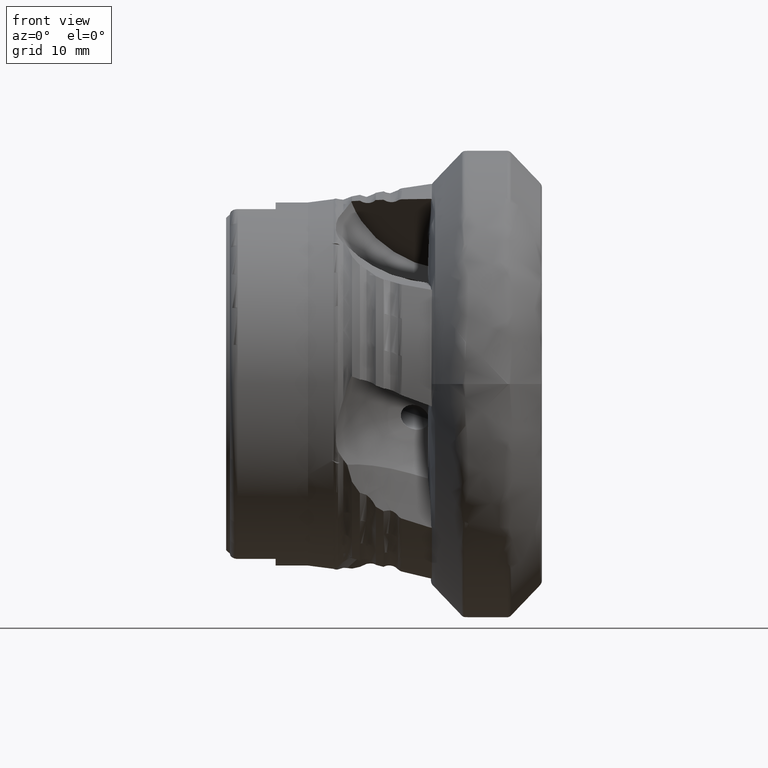
[diagram: clean part render]
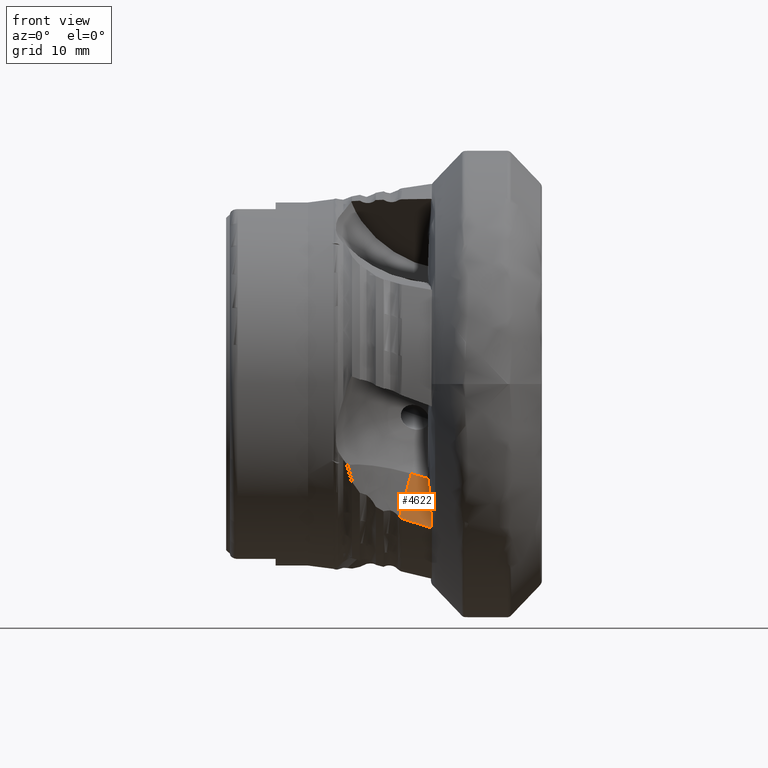
[diagram: same view with one face highlighted and labeled with its STEP entity id]
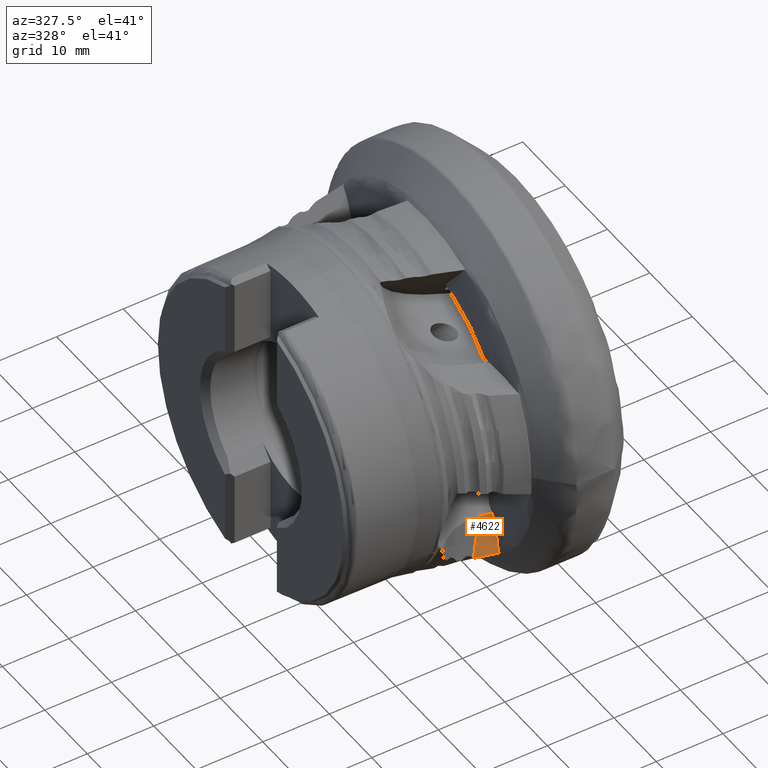
[diagram: same view with one face highlighted and labeled with its STEP entity id]
A machine part, front view. The second image highlights one B-rep face of the part: STEP entity #4622.
A second angle (auxiliary view) of the same face is appended — the face is thin or edge-on in the first view.
In plain terms, the highlighted planar face has unit normal (-0.1458, 0.9776, -0.1516).
Its self-contained STEP definition (entity closure, byte-faithful):
#19 = CARTESIAN_POINT ( 'NONE',  ( -12.99128308614031900, -17.62367975077520700, -18.21260289722786400 ) ) ;
#81 = CARTESIAN_POINT ( 'NONE',  ( -13.11160513520542500, -17.56185207285787800, -17.69831278248667400 ) ) ;
#262 = ORIENTED_EDGE ( 'NONE', *, *, #5163, .T. ) ;
#321 = DIRECTION ( 'NONE',  ( 0.9563047559630353200, 0.09999701235363783700, -0.2747395334545538700 ) ) ;
#408 = PLANE ( 'NONE',  #9230 ) ;
#424 = CARTESIAN_POINT ( 'NONE',  ( -12.99128308614031900, -17.62367975077520700, -18.21260289722786400 ) ) ;
#451 = B_SPLINE_CURVE_WITH_KNOTS ( 'NONE', 3,
 ( #5542, #2638, #8678, #4797 ),
 .UNSPECIFIED., .F., .F.,
 ( 4, 4 ),
 ( 2.101288066894413800E-007, 0.0001230032601015956400 ),
 .UNSPECIFIED. ) ;
#578 = B_SPLINE_CURVE_WITH_KNOTS ( 'NONE', 3,
 ( #19, #5240, #788, #2282, #8322, #81, #6085, #4527, #8297, #1633, #2338, #5991, #4558, #6825, #7595, #6789, #1528, #6860 ),
 .UNSPECIFIED., .F., .F.,
 ( 4, 2, 2, 2, 2, 2, 2, 2, 4 ),
 ( 0.005152208385864691000, 0.005350419478960494900, 0.005548630572056298700, 0.005945052758247907300, 0.006737897130631133200, 0.007530741503014359800, 0.008323585875397585700, 0.009909274620164044300, 0.01149496336493050300 ),
 .UNSPECIFIED. ) ;
#788 = CARTESIAN_POINT ( 'NONE',  ( -13.04337848692076200, -17.61207021958265900, -18.08766882312525200 ) ) ;
#874 = CARTESIAN_POINT ( 'NONE',  ( -17.08847830606466200, -18.02876348433765600, -16.88500868373394300 ) ) ;
#1122 = CARTESIAN_POINT ( 'NONE',  ( -15.61138407190258300, -16.95011119534634900, -11.35098804868099100 ) ) ;
#1438 = DIRECTION ( 'NONE',  ( -0.1457910410838688400, 0.9776250549777395500, -0.1516384655008534700 ) ) ;
#1451 = CARTESIAN_POINT ( 'NONE',  ( -15.61138407190258300, -16.95011119534638400, -11.35098804868100700 ) ) ;
#1515 = VERTEX_POINT ( 'NONE', #2381 ) ;
#1528 = CARTESIAN_POINT ( 'NONE',  ( -13.43545261059459900, -16.80160970108752500, -12.48561131866635200 ) ) ;
#1567 = VECTOR ( 'NONE', #3666, 1000.000000000000200 ) ;
#1589 = ORIENTED_EDGE ( 'NONE', *, *, #6650, .T. ) ;
#1592 = FACE_OUTER_BOUND ( 'NONE', #2526, .T. ) ;
#1633 = CARTESIAN_POINT ( 'NONE',  ( -13.10686704099587300, -17.35834734834317300, -16.39085728200063800 ) ) ;
#1684 = VERTEX_POINT ( 'NONE', #5443 ) ;
#2282 = CARTESIAN_POINT ( 'NONE',  ( -13.07877334401129600, -17.59729870452060400, -17.95840573526594900 ) ) ;
#2338 = CARTESIAN_POINT ( 'NONE',  ( -13.09980644783205900, -17.31669287541779000, -16.12909596026329200 ) ) ;
#2381 = CARTESIAN_POINT ( 'NONE',  ( -13.25900000000000000, -17.65650538537759900, -18.16683901580382000 ) ) ;
#2396 = CARTESIAN_POINT ( 'NONE',  ( -16.99508496783542100, -18.02631815791310300, -16.95903541299041400 ) ) ;
#2444 = ORIENTED_EDGE ( 'NONE', *, *, #7320, .T. ) ;
#2501 = CARTESIAN_POINT ( 'NONE',  ( -12.99128308614031900, -17.62367975077520700, -18.21260289722786400 ) ) ;
#2526 = EDGE_LOOP ( 'NONE', ( #262, #4884, #5086, #2858, #1589, #8219, #2444 ) ) ;
#2606 = LINE ( 'NONE', #2923, #1567 ) ;
#2638 = CARTESIAN_POINT ( 'NONE',  ( -13.22004075885251100, -17.65262741397193800, -18.17929434045925400 ) ) ;
#2672 = CARTESIAN_POINT ( 'NONE',  ( -15.61138407190258300, -16.95011119534638400, -11.35098804868100700 ) ) ;
#2690 =( BOUNDED_CURVE ( )  B_SPLINE_CURVE ( 3, ( #9405, #5728, #4908, #424 ),
 .UNSPECIFIED., .F., .T. ) 
 B_SPLINE_CURVE_WITH_KNOTS ( ( 4, 4 ),
 ( 4.096246615624300700, 4.097305811679246900 ),
 .UNSPECIFIED. ) 
 CURVE ( )  GEOMETRIC_REPRESENTATION_ITEM ( )  RATIONAL_B_SPLINE_CURVE ( ( 1.000000000000000000, 0.9999999065086451200, 0.9999999065086451200, 1.000000000000000000 ) ) 
 REPRESENTATION_ITEM ( '' )  );
#2858 = ORIENTED_EDGE ( 'NONE', *, *, #6146, .F. ) ;
#2923 = CARTESIAN_POINT ( 'NONE',  ( -15.61138407190258300, -16.95011119534638400, -11.35098804868100700 ) ) ;
#3086 = CARTESIAN_POINT ( 'NONE',  ( -16.77500000000000600, -18.00853376727341600, -17.05597619026752900 ) ) ;
#3161 = CARTESIAN_POINT ( 'NONE',  ( -16.77500000000000600, -18.00853376727341600, -17.05597619026752900 ) ) ;
#3198 = EDGE_CURVE ( 'NONE', #6429, #1684, #9199, .T. ) ;
#3261 = CARTESIAN_POINT ( 'NONE',  ( -13.25900000000000000, -17.65650538537759900, -18.16683901580382000 ) ) ;
#3666 = DIRECTION ( 'NONE',  ( 0.2534288579900900700, 0.1850671483546385300, 0.9494861581601497000 ) ) ;
#3904 = VERTEX_POINT ( 'NONE', #6302 ) ;
#3960 = B_SPLINE_CURVE_WITH_KNOTS ( 'NONE', 3,
 ( #7045, #4812, #6240, #3261 ),
 .UNSPECIFIED., .F., .F.,
 ( 4, 4 ),
 ( 2.111385295861541700E-007, 0.003704289458276442800 ),
 .UNSPECIFIED. ) ;
#4080 = VERTEX_POINT ( 'NONE', #3086 ) ;
#4365 = VERTEX_POINT ( 'NONE', #4966 ) ;
#4527 = CARTESIAN_POINT ( 'NONE',  ( -13.12222971834799200, -17.48239858560316800, -17.17585504973844100 ) ) ;
#4558 = CARTESIAN_POINT ( 'NONE',  ( -13.11153869609920600, -17.19688711101290600, -15.34541898681474400 ) ) ;
#4622 = ADVANCED_FACE ( 'NONE', ( #1592 ), #408, .F. ) ;
#4640 = CARTESIAN_POINT ( 'NONE',  ( -16.88928857505130300, -18.01982345369826900, -17.01888025942727400 ) ) ;
#4797 = CARTESIAN_POINT ( 'NONE',  ( -13.14000000000000600, -17.64296057833769300, -18.19392575232781100 ) ) ;
#4812 = CARTESIAN_POINT ( 'NONE',  ( -15.60544280934586100, -17.89283535578004700, -17.43451665060493700 ) ) ;
#4884 = ORIENTED_EDGE ( 'NONE', *, *, #5683, .T. ) ;
#4908 = CARTESIAN_POINT ( 'NONE',  ( -13.04087395763751700, -17.63010999012210400, -18.20638058624842200 ) ) ;
#4966 = CARTESIAN_POINT ( 'NONE',  ( -13.14000000000000600, -17.64296057833769300, -18.19392575232781100 ) ) ;
#5086 = ORIENTED_EDGE ( 'NONE', *, *, #3198, .F. ) ;
#5163 = EDGE_CURVE ( 'NONE', #4365, #5375, #2690, .T. ) ;
#5193 = VECTOR ( 'NONE', #321, 1000.000000000000000 ) ;
#5240 = CARTESIAN_POINT ( 'NONE',  ( -13.01910970093992100, -17.61842377536154900, -18.15196363684090700 ) ) ;
#5375 = VERTEX_POINT ( 'NONE', #2501 ) ;
#5443 = CARTESIAN_POINT ( 'NONE',  ( -13.47495597857101900, -16.72671334533109500, -11.96476859715273700 ) ) ;
#5490 = B_SPLINE_CURVE_WITH_KNOTS ( 'NONE', 3,
 ( #874, #2396, #4640, #3161 ),
 .UNSPECIFIED., .F., .F.,
 ( 4, 4 ),
 ( 0.0002747818565708397400, 0.0006314464773338492300 ),
 .UNSPECIFIED. ) ;
#5542 = CARTESIAN_POINT ( 'NONE',  ( -13.25900000000000000, -17.65650538537759900, -18.16683901580382000 ) ) ;
#5683 = EDGE_CURVE ( 'NONE', #5375, #1684, #578, .T. ) ;
#5728 = CARTESIAN_POINT ( 'NONE',  ( -13.09044626689209200, -17.63653693324382100, -18.20015487069968800 ) ) ;
#5991 = CARTESIAN_POINT ( 'NONE',  ( -13.10141382361799200, -17.23584860778063500, -15.60634124680170100 ) ) ;
#6085 = CARTESIAN_POINT ( 'NONE',  ( -13.11504478934592100, -17.54211056021787100, -17.56773068992368500 ) ) ;
#6146 = EDGE_CURVE ( 'NONE', #3904, #6429, #2606, .T. ) ;
#6240 = CARTESIAN_POINT ( 'NONE',  ( -14.43332884822965700, -17.77541584863931600, -17.80441924986223900 ) ) ;
#6302 = CARTESIAN_POINT ( 'NONE',  ( -17.08847830606466200, -18.02876348433765600, -16.88500868373394300 ) ) ;
#6429 = VERTEX_POINT ( 'NONE', #1451 ) ;
#6650 = EDGE_CURVE ( 'NONE', #3904, #4080, #5490, .T. ) ;
#6656 = DIRECTION ( 'NONE',  ( 0.0000000000000000000, 0.1532761590463538900, 0.9881833934386858900 ) ) ;
#6789 = CARTESIAN_POINT ( 'NONE',  ( -13.37049780192311800, -16.87253355803449400, -13.00531302143910600 ) ) ;
#6825 = CARTESIAN_POINT ( 'NONE',  ( -13.16999154819970000, -17.08440250244946100, -14.56402309625573300 ) ) ;
#6860 = CARTESIAN_POINT ( 'NONE',  ( -13.47495597857101900, -16.72671334533109500, -11.96476859715273700 ) ) ;
#7045 = CARTESIAN_POINT ( 'NONE',  ( -16.77500000000000600, -18.00853376727341600, -17.05597619026752900 ) ) ;
#7320 = EDGE_CURVE ( 'NONE', #1515, #4365, #451, .T. ) ;
#7595 = CARTESIAN_POINT ( 'NONE',  ( -13.23842650458972000, -17.01403016993227300, -14.04453116705114700 ) ) ;
#8219 = ORIENTED_EDGE ( 'NONE', *, *, #8760, .T. ) ;
#8297 = CARTESIAN_POINT ( 'NONE',  ( -13.11857841512333200, -17.44127867470236400, -16.91426226900421200 ) ) ;
#8322 = CARTESIAN_POINT ( 'NONE',  ( -13.08958786819554000, -17.58884244782704100, -17.89349008789216800 ) ) ;
#8678 = CARTESIAN_POINT ( 'NONE',  ( -13.18039034711182800, -17.64812711418910100, -18.18840198329847600 ) ) ;
#8760 = EDGE_CURVE ( 'NONE', #4080, #1515, #3960, .T. ) ;
#9199 = LINE ( 'NONE', #1122, #5193 ) ;
#9230 = AXIS2_PLACEMENT_3D ( 'NONE', #2672, #1438, #6656 ) ;
#9405 = CARTESIAN_POINT ( 'NONE',  ( -13.14000000000000600, -17.64296057833769300, -18.19392575232781100 ) ) ;